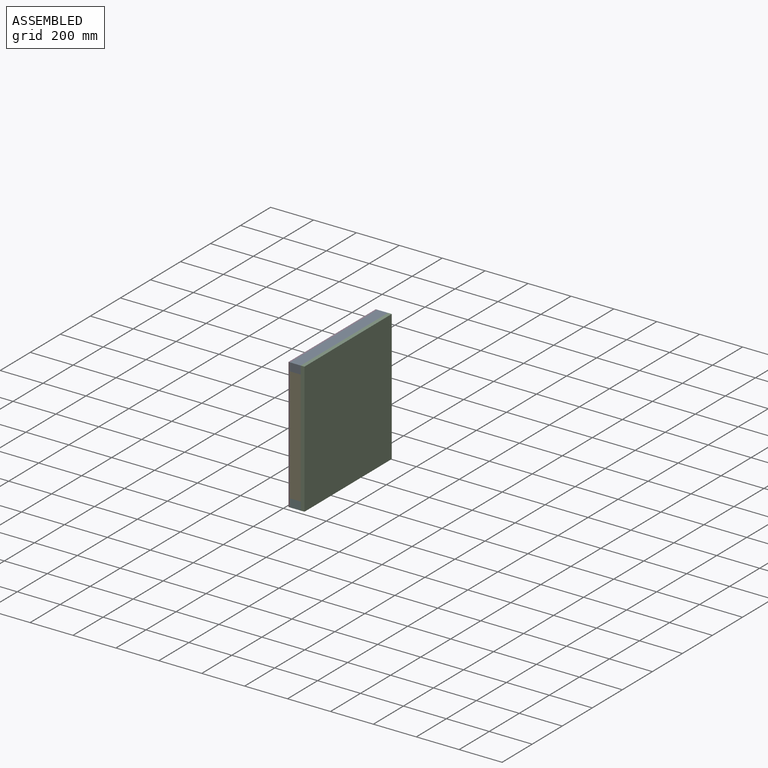
[diagram: assembled view]
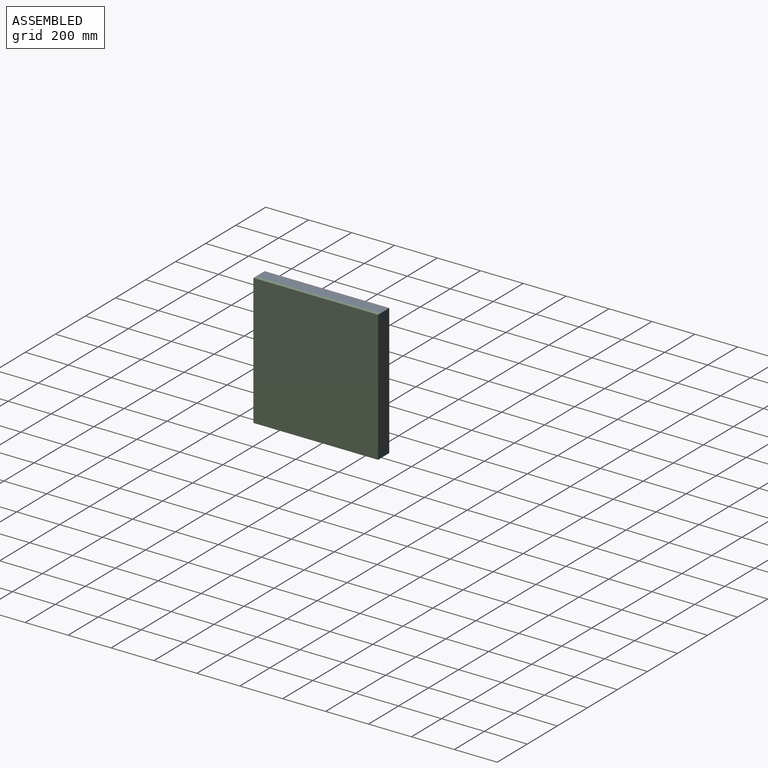
[diagram: assembled view, second angle]
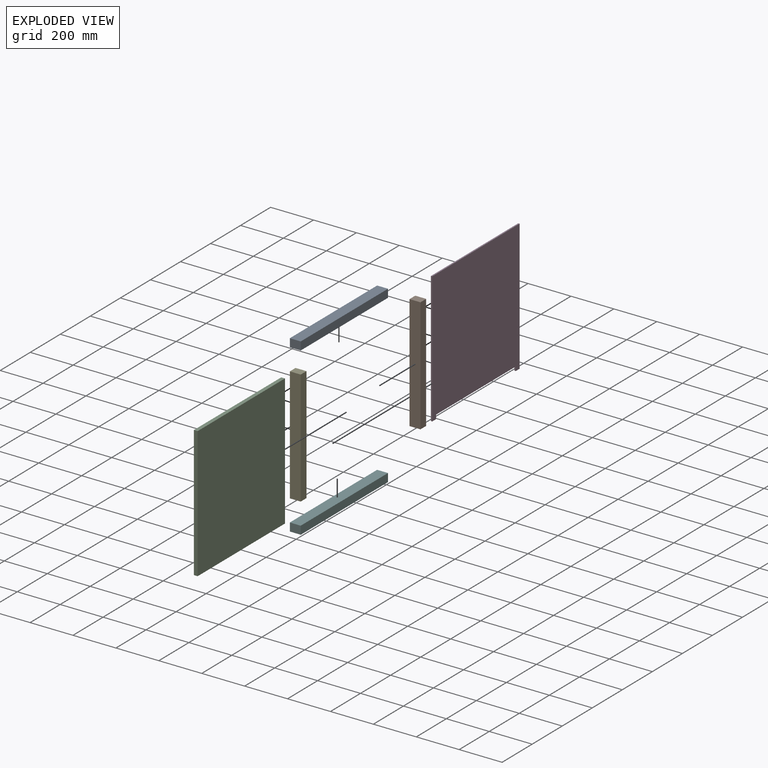
[diagram: exploded view]
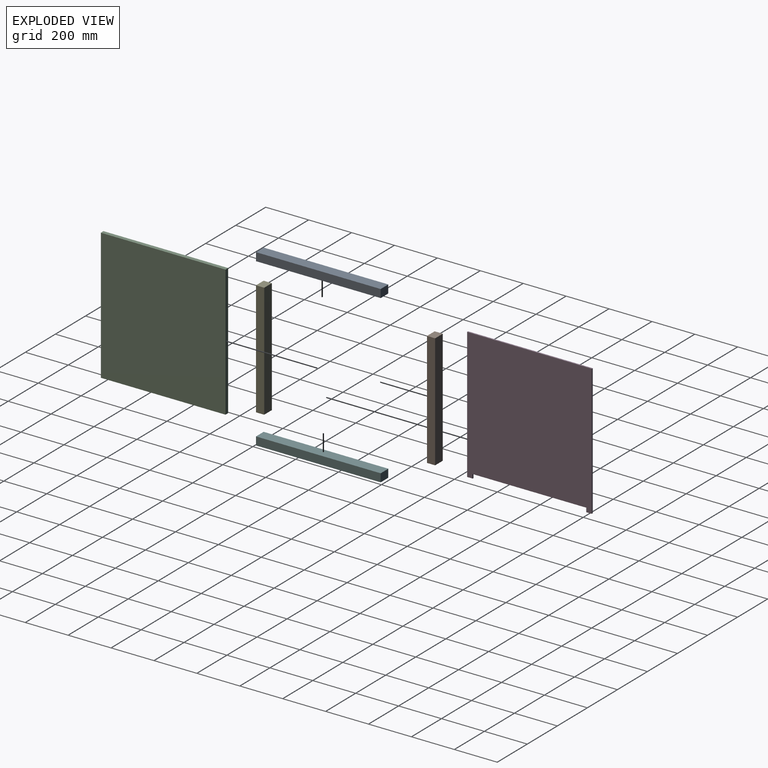
[diagram: exploded view, second angle]
ASSEMBLY  parts=6 mates=5
PART A: 6 faces, bbox 50.8x581x38.1 mm
  f0: plane 581.03x50.8mm, normal (0,0,-1), area 29516.1mm2, adj f1,f3,f4,f5
  f1: plane 50.8x38.1mm, normal (0,1,0), area 1935.5mm2, adj f0,f2,f4,f5
  f2: plane 581.03x50.8mm, normal (0,0,1), area 29516.1mm2, adj f1,f3,f4,f5
  f3: plane 50.8x38.1mm, normal (0,-1,0), area 1935.5mm2, adj f0,f2,f4,f5
  f4: plane 581.03x38.1mm, normal (-1,0,0), area 22137.1mm2, adj f0,f1,f2,f3
  f5: plane 581.03x38.1mm, normal (1,0,0), area 22137.1mm2, adj f0,f1,f2,f3
PART B: 6 faces, bbox 50.8x38.1x535 mm
  f0: plane 50.8x38.1mm, normal (0,0,1), area 1935.5mm2, adj f1,f3,f4,f5
  f1: plane 534.99x50.8mm, normal (0,-1,0), area 27177.4mm2, adj f0,f2,f4,f5
  f2: plane 50.8x38.1mm, normal (0,0,-1), area 1935.5mm2, adj f1,f3,f4,f5
  f3: plane 534.99x50.8mm, normal (0,1,0), area 27177.4mm2, adj f0,f2,f4,f5
  f4: plane 534.99x38.1mm, normal (-1,0,0), area 20383mm2, adj f0,f1,f2,f3
  f5: plane 534.99x38.1mm, normal (1,0,0), area 20383mm2, adj f0,f1,f2,f3
PART C: 6 faces, bbox 17.5x581x611.2 mm
  f0: plane 581.03x17.46mm, normal (0,0,-1), area 10146.1mm2, adj f1,f3,f4,f5
  f1: plane 611.19x17.46mm, normal (0,1,0), area 10672.9mm2, adj f0,f2,f4,f5
  f2: plane 581.03x17.46mm, normal (0,0,1), area 10146.1mm2, adj f1,f3,f4,f5
  f3: plane 611.19x17.46mm, normal (0,-1,0), area 10672.9mm2, adj f0,f2,f4,f5
  f4: plane 611.19x581.03mm, normal (1,0,0), area 355115.2mm2, adj f0,f1,f2,f3
  f5: plane 611.19x581.03mm, normal (-1,0,0), area 355115.2mm2, adj f0,f1,f2,f3
PART D: 10 faces, bbox 6.4x581x611.2 mm
  f0: plane 581.03x6.35mm, normal (0,0,1), area 3689.5mm2, adj f1,f7,f8,f9
  f1: plane 611.19x6.35mm, normal (0,-1,0), area 3881mm2, adj f0,f2,f8,f9
  f2: plane 25.4x6.35mm, normal (0,0,-1), area 161.3mm2, adj f1,f3,f8,f9
  f3: plane 19.05x6.35mm, normal (0,1,0), area 121mm2, adj f2,f4,f8,f9
  f4: plane 530.23x6.35mm, normal (0,0,-1), area 3366.9mm2, adj f3,f5,f8,f9
  f5: plane 19.05x6.35mm, normal (0,-1,0), area 121mm2, adj f4,f6,f8,f9
  f6: plane 25.4x6.35mm, normal (0,0,-1), area 161.3mm2, adj f5,f7,f8,f9
  f7: plane 611.19x6.35mm, normal (0,1,0), area 3881mm2, adj f0,f6,f8,f9
  f8: plane 611.19x581.03mm, normal (-1,0,0), area 345014.4mm2, adj f0,f1,f2,f3,f4,f5,f6,f7
  f9: plane 611.19x581.03mm, normal (1,0,0), area 345014.4mm2, adj f0,f1,f2,f3,f4,f5,f6,f7
PART E: 6 faces, bbox 50.8x38.1x535 mm
  f0: plane 50.8x38.1mm, normal (0,0,1), area 1935.5mm2, adj f1,f3,f4,f5
  f1: plane 534.99x50.8mm, normal (0,-1,0), area 27177.4mm2, adj f0,f2,f4,f5
  f2: plane 50.8x38.1mm, normal (0,0,-1), area 1935.5mm2, adj f1,f3,f4,f5
  f3: plane 534.99x50.8mm, normal (0,1,0), area 27177.4mm2, adj f0,f2,f4,f5
  f4: plane 534.99x38.1mm, normal (-1,0,0), area 20383mm2, adj f0,f1,f2,f3
  f5: plane 534.99x38.1mm, normal (1,0,0), area 20383mm2, adj f0,f1,f2,f3
PART F: 10 faces, bbox 50.8x581x38.1 mm
  f0: plane 19.05x19.05mm, normal (0,-1,0), area 362.9mm2, adj f4,f6,f7,f9
  f1: plane 50.8x38.1mm, normal (0,1,0), area 1935.5mm2, adj f2,f4,f7,f8
  f2: plane 581.03x50.8mm, normal (0,0,1), area 29516.1mm2, adj f1,f3,f7,f8
  f3: plane 50.8x38.1mm, normal (0,-1,0), area 1935.5mm2, adj f2,f4,f7,f8
  f4: plane 581.03x50.8mm, normal (0,0,-1), area 19415.3mm2, adj f0,f1,f3,f5,f7,f8,f9
  f5: plane 19.05x19.05mm, normal (0,1,0), area 362.9mm2, adj f4,f6,f7,f9
  f6: plane 530.23x19.05mm, normal (0,0,-1), area 10100.8mm2, adj f0,f5,f7,f9
  f7: plane 581.03x38.1mm, normal (-1,0,0), area 12036.3mm2, adj f0,f1,f2,f3,f4,f5,f6
  f8: plane 581.03x38.1mm, normal (1,0,0), area 22137.1mm2, adj f1,f2,f3,f4
  f9: plane 530.23x19.05mm, normal (-1,0,0), area 10100.8mm2, adj f0,f4,f5,f6
PLACE A t=(7.02,2.86,-1.79)mm
PLACE B t=(7.02,2.86,-1.79)mm
PLACE C t=(7.02,2.86,-1.79)mm
PLACE D t=(7.02,2.86,-1.79)mm
PLACE E t=(7.02,2.86,-1.79)mm
PLACE F t=(7.02,2.86,-1.79)mm
MATE fastened F.f3 <-> E.f1  axis (0,-1,0) through (7.02,20.32,36.31)mm
MATE fastened A.f3 <-> C.f3  axis (0,-1,0) through (7.02,20.32,609.4)mm
MATE fastened D.f1 <-> A.f3  axis (0,-1,0) through (-43.78,20.32,609.4)mm
MATE fastened E.f1 <-> A.f3  axis (0,-1,0) through (-43.78,20.32,571.3)mm
MATE fastened B.f3 <-> A.f1  axis (0,1,0) through (7.02,601.35,571.3)mm
